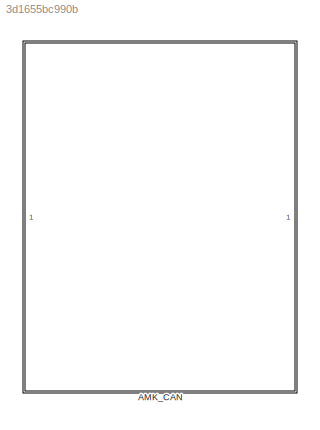
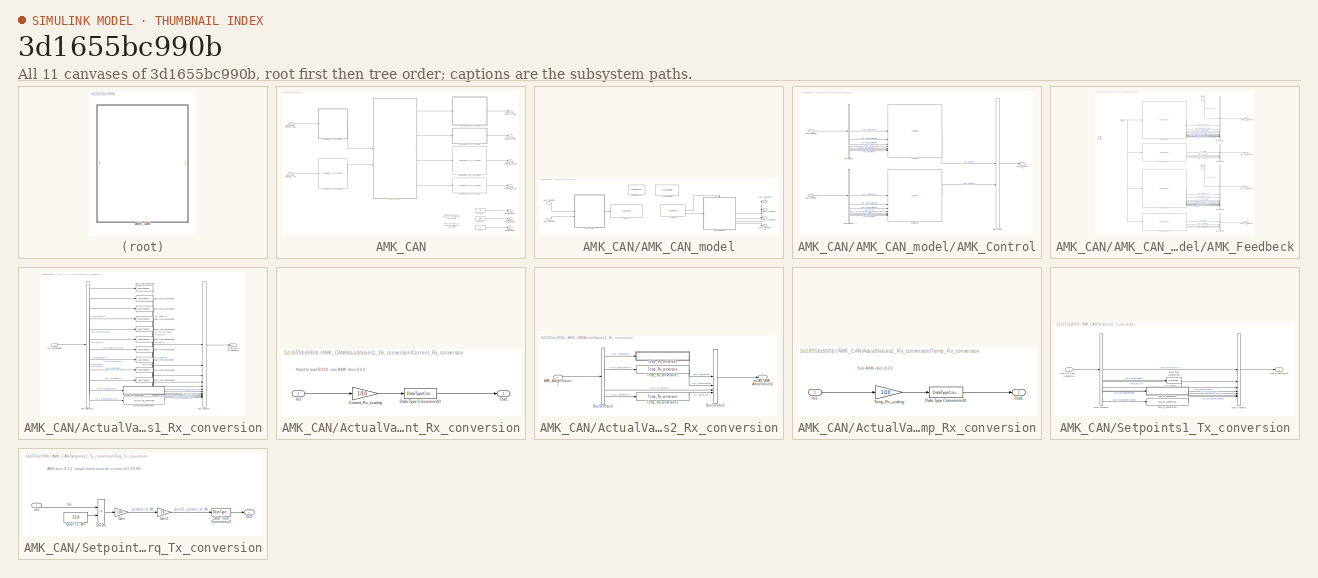
[diagram: thumbnail index - all 11 canvases of the model, root first then tree order]
MODEL slx_3d1655bc990b
KIND library
CONFIG AbsTol = auto
CONFIG EnableMultiTasking = off
CONFIG FixedStep = auto
CONFIG MaxStep = auto
CONFIG MinStep = auto
CONFIG RelTol = 1e-3
CONFIG SampleTimeConstraint = Unconstrained
CONFIG SolverName = VariableStepAuto
CONFIG StartTime = 0.0
CONFIG StopTime = 10.0
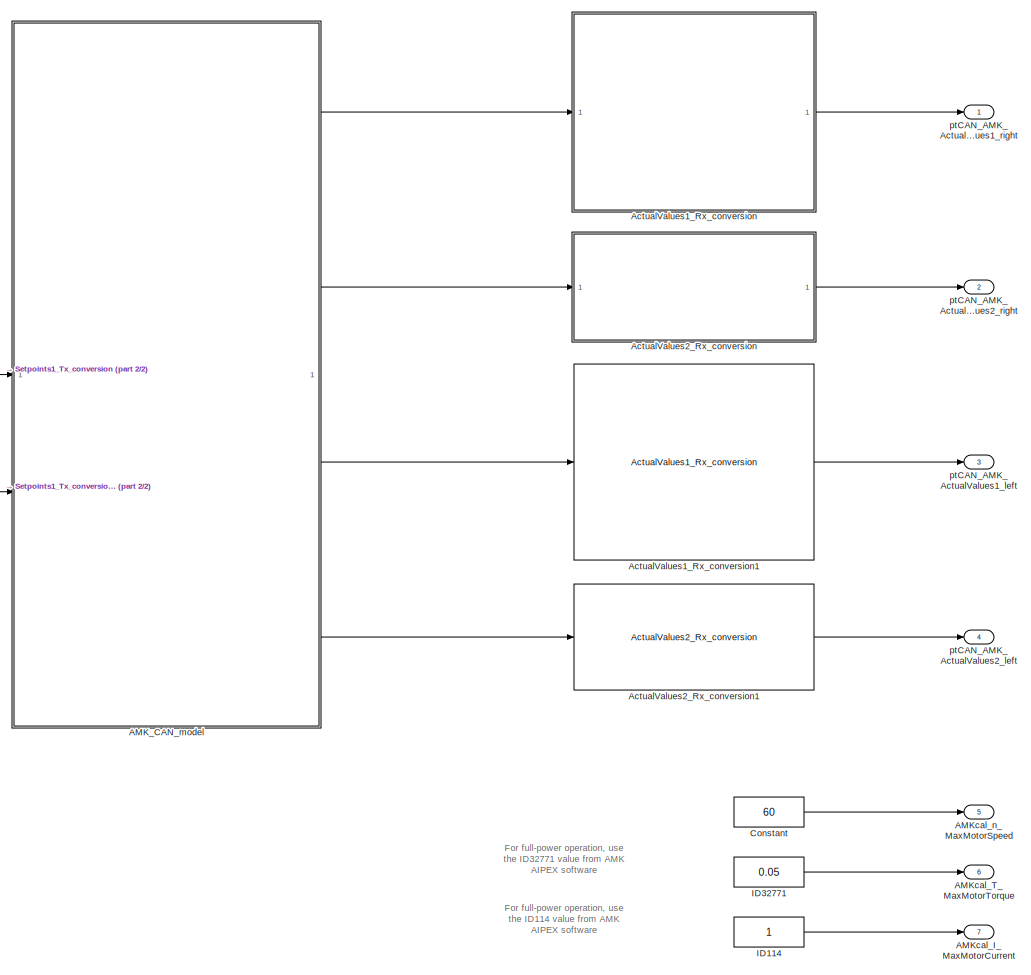
[diagram: AMK_CAN - part 1/2, right side, full height]
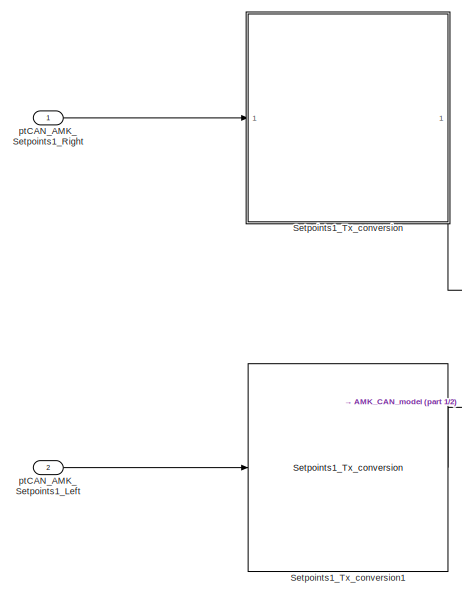
[diagram: AMK_CAN - part 2/2, middle left region]
BLOCK [SubSystem] AMK_CAN
BLOCK [SubSystem] AMK_CAN/AMK_CAN_model
BLOCK [Outport] AMK_CAN/AMK_CAN_model/AMK0_ActualValues1
BLOCK [Outport] AMK_CAN/AMK_CAN_model/AMK0_ActualValues2
  Port = 2
BLOCK [Inport] AMK_CAN/AMK_CAN_model/AMK0_SetPoints1
BLOCK [Outport] AMK_CAN/AMK_CAN_model/AMK1_ActualValues1
  Port = 3
BLOCK [Outport] AMK_CAN/AMK_CAN_model/AMK1_ActualValues2
  Port = 4
BLOCK [Inport] AMK_CAN/AMK_CAN_model/AMK1_SetPoints1
  Port = 2
BLOCK [SubSystem] AMK_CAN/AMK_CAN_model/AMK_Control
BLOCK [Inport] AMK_CAN/AMK_CAN_model/AMK_Control/AMK0_SetPoints1
BLOCK [Inport] AMK_CAN/AMK_CAN_model/AMK_Control/AMK1_SetPoints1
  Port = 2
BLOCK [Outport] AMK_CAN/AMK_CAN_model/AMK_Control/AMK_messages_Tx
BLOCK [BusCreator] AMK_CAN/AMK_CAN_model/AMK_Control/Bus Creator
  DisplayOption = bar
  InheritFromInputs = on
  Inputs = 2
BLOCK [BusSelector] AMK_CAN/AMK_CAN_model/AMK_Control/Bus Selector
  OutputSignals = ptCAN_AMK_Setpoints1_Right.AMK_TargetVelocity,ptCAN_AMK_Setpoints1_Right.AMK_TorqueLimitNegativ,ptCAN_AMK_Setpoints1_Right.AMK_TorqueLimitPositiv,ptCAN_AMK_Setpoints1_Right.AMK_bDcOn,ptCAN_AMK_Setpoints1_Right.AMK_bEnable,ptCAN_AMK_Setpoints1_Right.AMK_bErrorReset,ptCAN_AMK_Setpoints1_Right.AMK_bInverterOn
BLOCK [BusSelector] AMK_CAN/AMK_CAN_model/AMK_Control/Bus Selector1
  OutputSignals = ptCAN_AMK_Setpoints1_Right.AMK_TargetVelocity,ptCAN_AMK_Setpoints1_Right.AMK_TorqueLimitNegativ,ptCAN_AMK_Setpoints1_Right.AMK_TorqueLimitPositiv,ptCAN_AMK_Setpoints1_Right.AMK_bDcOn,ptCAN_AMK_Setpoints1_Right.AMK_bEnable,ptCAN_AMK_Setpoints1_Right.AMK_bErrorReset,ptCAN_AMK_Setpoints1_Right.AMK_bInverterOn
BLOCK [Reference] AMK_CAN/AMK_CAN_model/AMK_Control/CAN Pack  REF=canmsglib/CAN Pack
  LibrarySourceBlock = canlib/CAN Pack
  SourceBlock = canmsglib/CAN Pack
  SourceType = CAN Pack
BLOCK [Reference] AMK_CAN/AMK_CAN_model/AMK_Control/CAN Pack1  REF=canmsglib/CAN Pack
  LibrarySourceBlock = canlib/CAN Pack
  SourceBlock = canmsglib/CAN Pack
  SourceType = CAN Pack
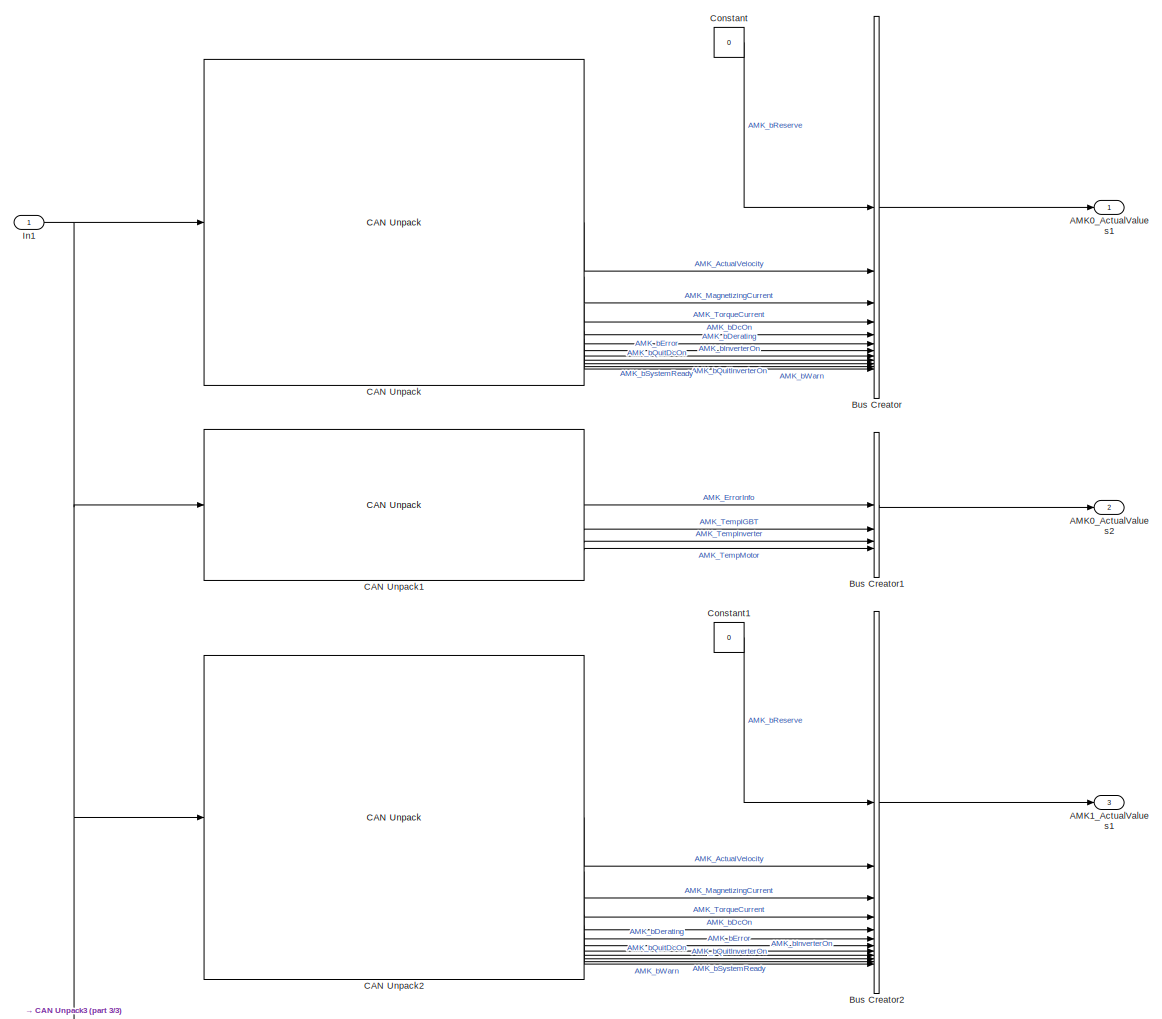
[diagram: AMK_CAN/AMK_CAN_model/AMK_Feedbeck - part 1/3, most of the canvas]
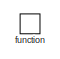
[diagram: AMK_CAN/AMK_CAN_model/AMK_Feedbeck - part 2/3, top left region]
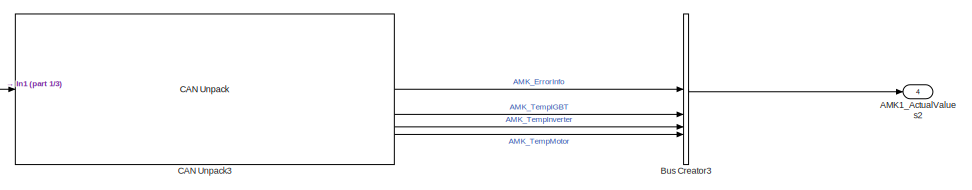
[diagram: AMK_CAN/AMK_CAN_model/AMK_Feedbeck - part 3/3, bottom center region]
BLOCK [SubSystem] AMK_CAN/AMK_CAN_model/AMK_Feedbeck
  TreatAsAtomicUnit = on
BLOCK [Outport] AMK_CAN/AMK_CAN_model/AMK_Feedbeck/AMK0_ActualValues1
BLOCK [Outport] AMK_CAN/AMK_CAN_model/AMK_Feedbeck/AMK0_ActualValues2
  Port = 2
BLOCK [Outport] AMK_CAN/AMK_CAN_model/AMK_Feedbeck/AMK1_ActualValues1
  Port = 3
BLOCK [Outport] AMK_CAN/AMK_CAN_model/AMK_Feedbeck/AMK1_ActualValues2
  Port = 4
BLOCK [BusCreator] AMK_CAN/AMK_CAN_model/AMK_Feedbeck/Bus Creator
  DisplayOption = bar
  InheritFromInputs = on
  Inputs = 12
BLOCK [BusCreator] AMK_CAN/AMK_CAN_model/AMK_Feedbeck/Bus Creator1
  DisplayOption = bar
  InheritFromInputs = on
  Inputs = 4
BLOCK [BusCreator] AMK_CAN/AMK_CAN_model/AMK_Feedbeck/Bus Creator2
  DisplayOption = bar
  InheritFromInputs = on
  Inputs = 12
BLOCK [BusCreator] AMK_CAN/AMK_CAN_model/AMK_Feedbeck/Bus Creator3
  DisplayOption = bar
  InheritFromInputs = on
  Inputs = 4
BLOCK [Reference] AMK_CAN/AMK_CAN_model/AMK_Feedbeck/CAN Unpack  REF=canmsglib/CAN Unpack
  LibrarySourceBlock = canlib/CAN Unpack
  SourceBlock = canmsglib/CAN Unpack
  SourceType = CAN Unpack
BLOCK [Reference] AMK_CAN/AMK_CAN_model/AMK_Feedbeck/CAN Unpack1  REF=canmsglib/CAN Unpack
  LibrarySourceBlock = canlib/CAN Unpack
  SourceBlock = canmsglib/CAN Unpack
  SourceType = CAN Unpack
BLOCK [Reference] AMK_CAN/AMK_CAN_model/AMK_Feedbeck/CAN Unpack2  REF=canmsglib/CAN Unpack
  LibrarySourceBlock = canlib/CAN Unpack
  SourceBlock = canmsglib/CAN Unpack
  SourceType = CAN Unpack
BLOCK [Reference] AMK_CAN/AMK_CAN_model/AMK_Feedbeck/CAN Unpack3  REF=canmsglib/CAN Unpack
  LibrarySourceBlock = canlib/CAN Unpack
  SourceBlock = canmsglib/CAN Unpack
  SourceType = CAN Unpack
BLOCK [Constant] AMK_CAN/AMK_CAN_model/AMK_Feedbeck/Constant
  OutDataTypeStr = boolean
  Value = 0
BLOCK [Constant] AMK_CAN/AMK_CAN_model/AMK_Feedbeck/Constant1
  OutDataTypeStr = boolean
  Value = 0
BLOCK [Inport] AMK_CAN/AMK_CAN_model/AMK_Feedbeck/In1
BLOCK [TriggerPort] AMK_CAN/AMK_CAN_model/AMK_Feedbeck/function
  StatesWhenEnabling = held
  TriggerType = function-call
  VariantControl = (inherit)
BLOCK [Reference] AMK_CAN/AMK_CAN_model/CAN Configuration  REF=canlib/CAN Configuration
  SourceBlock = canlib/CAN Configuration
  SourceType = CAN Configuration
BLOCK [Reference] AMK_CAN/AMK_CAN_model/CAN_Rx  REF=canlib/CAN Receive
  SourceBlock = canlib/CAN Receive
  SourceType = CAN Receive
BLOCK [Reference] AMK_CAN/AMK_CAN_model/CAN_Tx  REF=canlib/CAN Transmit
  SourceBlock = canlib/CAN Transmit
  SourceType = CAN Transmit
BLOCK [Reference] AMK_CAN/AMK_CAN_model/Real-Time Pacer  REF=realtime_pacer_lib/Real-Time Pacer
  SourceBlock = realtime_pacer_lib/Real-Time Pacer
  SourceType = RealTime_Pacer
BLOCK [Outport] AMK_CAN/AMKcal_I_MaxMotorCurrent
  Port = 7
BLOCK [Outport] AMK_CAN/AMKcal_T_MaxMotorTorque
  Port = 6
BLOCK [Outport] AMK_CAN/AMKcal_n_MaxMotorSpeed
  Port = 5
BLOCK [SubSystem] AMK_CAN/ActualValues1_Rx_conversion
BLOCK [Inport] AMK_CAN/ActualValues1_Rx_conversion/AMK_ActualValues1
BLOCK [BusCreator] AMK_CAN/ActualValues1_Rx_conversion/Bus Creator1
  DisplayOption = bar
  InheritFromInputs = on
  Inputs = 12
BLOCK [BusSelector] AMK_CAN/ActualValues1_Rx_conversion/Bus Selector2
  OutputSignals = AMK_bReserve,AMK_bSystemReady,AMK_bError,AMK_bWarn,AMK_bQuitDcOn,AMK_bDcOn,AMK_bQuitInverterOn,AMK_bInverterOn,AMK_bDerating,AMK_ActualVelocity,AMK_TorqueCurrent,AMK_MagnetizingCurrent
BLOCK [SubSystem] AMK_CAN/ActualValues1_Rx_conversion/Current_Rx_conversion
BLOCK [Gain] AMK_CAN/ActualValues1_Rx_conversion/Current_Rx_conversion/Current_Rx_scaling
  Gain = 1/10
BLOCK [DataTypeConversion] AMK_CAN/ActualValues1_Rx_conversion/Current_Rx_conversion/Data Type Conversion10
  OutDataTypeStr = single
  RndMeth = Floor
  SaturateOnIntegerOverflow = off
BLOCK [Inport] AMK_CAN/ActualValues1_Rx_conversion/Current_Rx_conversion/In1
BLOCK [Outport] AMK_CAN/ActualValues1_Rx_conversion/Current_Rx_conversion/Out1
BLOCK [Reference] AMK_CAN/ActualValues1_Rx_conversion/Current_Rx_conversion1  REF=$bdroot/AMK_CAN/ActualValues1_Rx_conversion/Current_Rx_conversion
  SourceBlock = $bdroot/AMK_CAN/ActualValues1_Rx_conversion/Current_Rx_conversion
  SourceType = SubSystem
BLOCK [DataTypeConversion] AMK_CAN/ActualValues1_Rx_conversion/Data Type Conversion
  OutDataTypeStr = boolean
  RndMeth = Floor
  SaturateOnIntegerOverflow = off
BLOCK [DataTypeConversion] AMK_CAN/ActualValues1_Rx_conversion/Data Type Conversion1
  OutDataTypeStr = boolean
  RndMeth = Floor
  SaturateOnIntegerOverflow = off
BLOCK [DataTypeConversion] AMK_CAN/ActualValues1_Rx_conversion/Data Type Conversion2
  OutDataTypeStr = boolean
  RndMeth = Floor
  SaturateOnIntegerOverflow = off
BLOCK [DataTypeConversion] AMK_CAN/ActualValues1_Rx_conversion/Data Type Conversion3
  OutDataTypeStr = boolean
  RndMeth = Floor
  SaturateOnIntegerOverflow = off
BLOCK [DataTypeConversion] AMK_CAN/ActualValues1_Rx_conversion/Data Type Conversion4
  OutDataTypeStr = boolean
  RndMeth = Floor
  SaturateOnIntegerOverflow = off
BLOCK [DataTypeConversion] AMK_CAN/ActualValues1_Rx_conversion/Data Type Conversion5
  OutDataTypeStr = boolean
  RndMeth = Floor
  SaturateOnIntegerOverflow = off
BLOCK [DataTypeConversion] AMK_CAN/ActualValues1_Rx_conversion/Data Type Conversion6
  OutDataTypeStr = boolean
  RndMeth = Floor
  SaturateOnIntegerOverflow = off
BLOCK [DataTypeConversion] AMK_CAN/ActualValues1_Rx_conversion/Data Type Conversion7
  OutDataTypeStr = boolean
  RndMeth = Floor
  SaturateOnIntegerOverflow = off
BLOCK [DataTypeConversion] AMK_CAN/ActualValues1_Rx_conversion/Data Type Conversion8
  OutDataTypeStr = boolean
  RndMeth = Floor
  SaturateOnIntegerOverflow = off
BLOCK [DataTypeConversion] AMK_CAN/ActualValues1_Rx_conversion/Data Type Conversion9
  OutDataTypeStr = single
  RndMeth = Floor
  SaturateOnIntegerOverflow = off
BLOCK [Outport] AMK_CAN/ActualValues1_Rx_conversion/ptCAN_AMK_ActualValues1
BLOCK [Reference] AMK_CAN/ActualValues1_Rx_conversion1  REF=$bdroot/AMK_CAN/ActualValues1_Rx_conversion
  SourceBlock = $bdroot/AMK_CAN/ActualValues1_Rx_conversion
  SourceType = SubSystem
BLOCK [SubSystem] AMK_CAN/ActualValues2_Rx_conversion
BLOCK [Inport] AMK_CAN/ActualValues2_Rx_conversion/AMK_ActualValues2
BLOCK [BusCreator] AMK_CAN/ActualValues2_Rx_conversion/Bus Creator1
  DisplayOption = bar
  InheritFromInputs = on
  Inputs = 4
BLOCK [BusSelector] AMK_CAN/ActualValues2_Rx_conversion/Bus Selector3
  OutputSignals = AMK_TempMotor,AMK_TempInverter,AMK_ErrorInfo,AMK_TempIGBT
BLOCK [SubSystem] AMK_CAN/ActualValues2_Rx_conversion/Temp_Rx_conversion
BLOCK [DataTypeConversion] AMK_CAN/ActualValues2_Rx_conversion/Temp_Rx_conversion/Data Type Conversion10
  OutDataTypeStr = single
  RndMeth = Floor
  SaturateOnIntegerOverflow = off
BLOCK [Inport] AMK_CAN/ActualValues2_Rx_conversion/Temp_Rx_conversion/In1
BLOCK [Outport] AMK_CAN/ActualValues2_Rx_conversion/Temp_Rx_conversion/Out1
BLOCK [Gain] AMK_CAN/ActualValues2_Rx_conversion/Temp_Rx_conversion/Temp_Rx_scaling
  Gain = 1/10
BLOCK [Reference] AMK_CAN/ActualValues2_Rx_conversion/Temp_Rx_conversion1  REF=$bdroot/AMK_CAN/ActualValues2_Rx_conversion/Temp_Rx_conversion
  SourceBlock = $bdroot/AMK_CAN/ActualValues2_Rx_conversion/Temp_Rx_conversion
  SourceType = SubSystem
BLOCK [Reference] AMK_CAN/ActualValues2_Rx_conversion/Temp_Rx_conversion2  REF=$bdroot/AMK_CAN/ActualValues2_Rx_conversion/Temp_Rx_conversion
  SourceBlock = $bdroot/AMK_CAN/ActualValues2_Rx_conversion/Temp_Rx_conversion
  SourceType = SubSystem
BLOCK [Outport] AMK_CAN/ActualValues2_Rx_conversion/ptCAN_AMK_ActualValues2
BLOCK [Reference] AMK_CAN/ActualValues2_Rx_conversion1  REF=$bdroot/AMK_CAN/ActualValues2_Rx_conversion
  SourceBlock = $bdroot/AMK_CAN/ActualValues2_Rx_conversion
  SourceType = SubSystem
BLOCK [Constant] AMK_CAN/Constant
  OutDataTypeStr = single
  Value = 60
BLOCK [Constant] AMK_CAN/ID114
  OutDataTypeStr = single
BLOCK [Constant] AMK_CAN/ID32771
  OutDataTypeStr = single
  Value = 0.05
BLOCK [SubSystem] AMK_CAN/Setpoints1_Tx_conversion
BLOCK [Outport] AMK_CAN/Setpoints1_Tx_conversion/AMK_SetPoints1
BLOCK [BusCreator] AMK_CAN/Setpoints1_Tx_conversion/Bus Creator3
  DisplayOption = bar
  InheritFromInputs = on
  Inputs = 7
BLOCK [BusSelector] AMK_CAN/Setpoints1_Tx_conversion/Bus Selector
  OutputSignals = AMK_bInverterOn,AMK_bDcOn,AMK_bEnable,AMK_bErrorReset,AMK_TargetVelocity,AMK_TorqueLimitPositiv,AMK_TorqueLimitNegativ
BLOCK [DataTypeConversion] AMK_CAN/Setpoints1_Tx_conversion/Data Type Conversion1
  OutDataTypeStr = int16
  RndMeth = Floor
  SaturateOnIntegerOverflow = off
BLOCK [SubSystem] AMK_CAN/Setpoints1_Tx_conversion/Torq_Tx_conversion
BLOCK [DataTypeConversion] AMK_CAN/Setpoints1_Tx_conversion/Torq_Tx_conversion/Data Type Conversion2
  OutDataTypeStr = int16
  RndMeth = Floor
  SaturateOnIntegerOverflow = off
BLOCK [Product] AMK_CAN/Setpoints1_Tx_conversion/Torq_Tx_conversion/Divide
  Inputs = */
BLOCK [Gain] AMK_CAN/Setpoints1_Tx_conversion/Torq_Tx_conversion/Gain
  Gain = 100
BLOCK [Gain] AMK_CAN/Setpoints1_Tx_conversion/Torq_Tx_conversion/Gain1
  Gain = 10
BLOCK [Constant] AMK_CAN/Setpoints1_Tx_conversion/Torq_Tx_conversion/ID32771_Mn
  OutDataTypeStr = single
  Value = 13.8
BLOCK [Inport] AMK_CAN/Setpoints1_Tx_conversion/Torq_Tx_conversion/In1
BLOCK [Outport] AMK_CAN/Setpoints1_Tx_conversion/Torq_Tx_conversion/Out1
BLOCK [Reference] AMK_CAN/Setpoints1_Tx_conversion/Torq_Tx_conversion1  REF=$bdroot/AMK_CAN/Setpoints1_Tx_conversion/Torq_Tx_conversion
  SourceBlock = $bdroot/AMK_CAN/Setpoints1_Tx_conversion/Torq_Tx_conversion
  SourceType = SubSystem
BLOCK [Inport] AMK_CAN/Setpoints1_Tx_conversion/ptCAN_AMK_Setpoints1
BLOCK [Reference] AMK_CAN/Setpoints1_Tx_conversion1  REF=$bdroot/AMK_CAN/Setpoints1_Tx_conversion
  SourceBlock = $bdroot/AMK_CAN/Setpoints1_Tx_conversion
  SourceType = SubSystem
BLOCK [Outport] AMK_CAN/ptCAN_AMK_ActualValues1_left
  Port = 3
BLOCK [Outport] AMK_CAN/ptCAN_AMK_ActualValues1_right
BLOCK [Outport] AMK_CAN/ptCAN_AMK_ActualValues2_left
  Port = 4
BLOCK [Outport] AMK_CAN/ptCAN_AMK_ActualValues2_right
  Port = 2
BLOCK [Inport] AMK_CAN/ptCAN_AMK_Setpoints1_Left
  Port = 2
BLOCK [Inport] AMK_CAN/ptCAN_AMK_Setpoints1_Right
ANNOTATION AMK_CAN: For full-power operation, use the ID114 value from AMK AIPEX software
ANNOTATION AMK_CAN: For full-power operation, use the ID32771 value from AMK AIPEX software
ANNOTATION AMK_CAN/ActualValues1_Rx_conversion/Current_Rx_conversion: Need to read ID110 - see AMK docs 8.2.4
ANNOTATION AMK_CAN/ActualValues2_Rx_conversion/Temp_Rx_conversion: See AMK docs 8.2.4
ANNOTATION AMK_CAN/Setpoints1_Tx_conversion/Torq_Tx_conversion: AMK docs 8.2.4 - torque limits must be in units of 0.1% Mn
LINE AMK_CAN/AMK_CAN_model/AMK0_SetPoints1:1 -> AMK_CAN/AMK_CAN_model/AMK_Control:1
LINE AMK_CAN/AMK_CAN_model/AMK1_SetPoints1:1 -> AMK_CAN/AMK_CAN_model/AMK_Control:2
LINE AMK_CAN/AMK_CAN_model/AMK_Control/AMK0_SetPoints1:1 -> AMK_CAN/AMK_CAN_model/AMK_Control/Bus Selector:1
LINE AMK_CAN/AMK_CAN_model/AMK_Control/AMK1_SetPoints1:1 -> AMK_CAN/AMK_CAN_model/AMK_Control/Bus Selector1:1
LINE AMK_CAN/AMK_CAN_model/AMK_Control/Bus Creator:1 -> AMK_CAN/AMK_CAN_model/AMK_Control/AMK_messages_Tx:1
LINE AMK_CAN/AMK_CAN_model/AMK_Control/Bus Selector1:1 -> AMK_CAN/AMK_CAN_model/AMK_Control/CAN Pack1:1
LINE AMK_CAN/AMK_CAN_model/AMK_Control/Bus Selector1:2 -> AMK_CAN/AMK_CAN_model/AMK_Control/CAN Pack1:2
LINE AMK_CAN/AMK_CAN_model/AMK_Control/Bus Selector1:3 -> AMK_CAN/AMK_CAN_model/AMK_Control/CAN Pack1:3
LINE AMK_CAN/AMK_CAN_model/AMK_Control/Bus Selector1:4 -> AMK_CAN/AMK_CAN_model/AMK_Control/CAN Pack1:4
LINE AMK_CAN/AMK_CAN_model/AMK_Control/Bus Selector1:5 -> AMK_CAN/AMK_CAN_model/AMK_Control/CAN Pack1:5
LINE AMK_CAN/AMK_CAN_model/AMK_Control/Bus Selector1:6 -> AMK_CAN/AMK_CAN_model/AMK_Control/CAN Pack1:6
LINE AMK_CAN/AMK_CAN_model/AMK_Control/Bus Selector1:7 -> AMK_CAN/AMK_CAN_model/AMK_Control/CAN Pack1:7
LINE AMK_CAN/AMK_CAN_model/AMK_Control/Bus Selector:1 -> AMK_CAN/AMK_CAN_model/AMK_Control/CAN Pack:1
LINE AMK_CAN/AMK_CAN_model/AMK_Control/Bus Selector:2 -> AMK_CAN/AMK_CAN_model/AMK_Control/CAN Pack:2
LINE AMK_CAN/AMK_CAN_model/AMK_Control/Bus Selector:3 -> AMK_CAN/AMK_CAN_model/AMK_Control/CAN Pack:3
LINE AMK_CAN/AMK_CAN_model/AMK_Control/Bus Selector:4 -> AMK_CAN/AMK_CAN_model/AMK_Control/CAN Pack:4
LINE AMK_CAN/AMK_CAN_model/AMK_Control/Bus Selector:5 -> AMK_CAN/AMK_CAN_model/AMK_Control/CAN Pack:5
LINE AMK_CAN/AMK_CAN_model/AMK_Control/Bus Selector:6 -> AMK_CAN/AMK_CAN_model/AMK_Control/CAN Pack:6
LINE AMK_CAN/AMK_CAN_model/AMK_Control/Bus Selector:7 -> AMK_CAN/AMK_CAN_model/AMK_Control/CAN Pack:7
LINE AMK_CAN/AMK_CAN_model/AMK_Control/CAN Pack1:1 -> AMK_CAN/AMK_CAN_model/AMK_Control/Bus Creator:2
LINE AMK_CAN/AMK_CAN_model/AMK_Control/CAN Pack:1 -> AMK_CAN/AMK_CAN_model/AMK_Control/Bus Creator:1
LINE AMK_CAN/AMK_CAN_model/AMK_Control:1 -> AMK_CAN/AMK_CAN_model/CAN_Tx:1
LINE AMK_CAN/AMK_CAN_model/AMK_Feedbeck/Bus Creator1:1 -> AMK_CAN/AMK_CAN_model/AMK_Feedbeck/AMK0_ActualValues2:1
LINE AMK_CAN/AMK_CAN_model/AMK_Feedbeck/Bus Creator2:1 -> AMK_CAN/AMK_CAN_model/AMK_Feedbeck/AMK1_ActualValues1:1
LINE AMK_CAN/AMK_CAN_model/AMK_Feedbeck/Bus Creator3:1 -> AMK_CAN/AMK_CAN_model/AMK_Feedbeck/AMK1_ActualValues2:1
LINE AMK_CAN/AMK_CAN_model/AMK_Feedbeck/Bus Creator:1 -> AMK_CAN/AMK_CAN_model/AMK_Feedbeck/AMK0_ActualValues1:1
LINE AMK_CAN/AMK_CAN_model/AMK_Feedbeck/CAN Unpack1:1 -> AMK_CAN/AMK_CAN_model/AMK_Feedbeck/Bus Creator1:1
LINE AMK_CAN/AMK_CAN_model/AMK_Feedbeck/CAN Unpack1:2 -> AMK_CAN/AMK_CAN_model/AMK_Feedbeck/Bus Creator1:2
LINE AMK_CAN/AMK_CAN_model/AMK_Feedbeck/CAN Unpack1:3 -> AMK_CAN/AMK_CAN_model/AMK_Feedbeck/Bus Creator1:3
LINE AMK_CAN/AMK_CAN_model/AMK_Feedbeck/CAN Unpack1:4 -> AMK_CAN/AMK_CAN_model/AMK_Feedbeck/Bus Creator1:4
LINE AMK_CAN/AMK_CAN_model/AMK_Feedbeck/CAN Unpack2:1 -> AMK_CAN/AMK_CAN_model/AMK_Feedbeck/Bus Creator2:2
LINE AMK_CAN/AMK_CAN_model/AMK_Feedbeck/CAN Unpack2:10 -> AMK_CAN/AMK_CAN_model/AMK_Feedbeck/Bus Creator2:11
LINE AMK_CAN/AMK_CAN_model/AMK_Feedbeck/CAN Unpack2:11 -> AMK_CAN/AMK_CAN_model/AMK_Feedbeck/Bus Creator2:12
LINE AMK_CAN/AMK_CAN_model/AMK_Feedbeck/CAN Unpack2:2 -> AMK_CAN/AMK_CAN_model/AMK_Feedbeck/Bus Creator2:3
LINE AMK_CAN/AMK_CAN_model/AMK_Feedbeck/CAN Unpack2:3 -> AMK_CAN/AMK_CAN_model/AMK_Feedbeck/Bus Creator2:4
LINE AMK_CAN/AMK_CAN_model/AMK_Feedbeck/CAN Unpack2:4 -> AMK_CAN/AMK_CAN_model/AMK_Feedbeck/Bus Creator2:5
LINE AMK_CAN/AMK_CAN_model/AMK_Feedbeck/CAN Unpack2:5 -> AMK_CAN/AMK_CAN_model/AMK_Feedbeck/Bus Creator2:6
LINE AMK_CAN/AMK_CAN_model/AMK_Feedbeck/CAN Unpack2:6 -> AMK_CAN/AMK_CAN_model/AMK_Feedbeck/Bus Creator2:7
LINE AMK_CAN/AMK_CAN_model/AMK_Feedbeck/CAN Unpack2:7 -> AMK_CAN/AMK_CAN_model/AMK_Feedbeck/Bus Creator2:8
LINE AMK_CAN/AMK_CAN_model/AMK_Feedbeck/CAN Unpack2:8 -> AMK_CAN/AMK_CAN_model/AMK_Feedbeck/Bus Creator2:9
LINE AMK_CAN/AMK_CAN_model/AMK_Feedbeck/CAN Unpack2:9 -> AMK_CAN/AMK_CAN_model/AMK_Feedbeck/Bus Creator2:10
LINE AMK_CAN/AMK_CAN_model/AMK_Feedbeck/CAN Unpack3:1 -> AMK_CAN/AMK_CAN_model/AMK_Feedbeck/Bus Creator3:1
LINE AMK_CAN/AMK_CAN_model/AMK_Feedbeck/CAN Unpack3:2 -> AMK_CAN/AMK_CAN_model/AMK_Feedbeck/Bus Creator3:2
LINE AMK_CAN/AMK_CAN_model/AMK_Feedbeck/CAN Unpack3:3 -> AMK_CAN/AMK_CAN_model/AMK_Feedbeck/Bus Creator3:3
LINE AMK_CAN/AMK_CAN_model/AMK_Feedbeck/CAN Unpack3:4 -> AMK_CAN/AMK_CAN_model/AMK_Feedbeck/Bus Creator3:4
LINE AMK_CAN/AMK_CAN_model/AMK_Feedbeck/CAN Unpack:1 -> AMK_CAN/AMK_CAN_model/AMK_Feedbeck/Bus Creator:2
LINE AMK_CAN/AMK_CAN_model/AMK_Feedbeck/CAN Unpack:10 -> AMK_CAN/AMK_CAN_model/AMK_Feedbeck/Bus Creator:11
LINE AMK_CAN/AMK_CAN_model/AMK_Feedbeck/CAN Unpack:11 -> AMK_CAN/AMK_CAN_model/AMK_Feedbeck/Bus Creator:12
LINE AMK_CAN/AMK_CAN_model/AMK_Feedbeck/CAN Unpack:2 -> AMK_CAN/AMK_CAN_model/AMK_Feedbeck/Bus Creator:3
LINE AMK_CAN/AMK_CAN_model/AMK_Feedbeck/CAN Unpack:3 -> AMK_CAN/AMK_CAN_model/AMK_Feedbeck/Bus Creator:4
LINE AMK_CAN/AMK_CAN_model/AMK_Feedbeck/CAN Unpack:4 -> AMK_CAN/AMK_CAN_model/AMK_Feedbeck/Bus Creator:5
LINE AMK_CAN/AMK_CAN_model/AMK_Feedbeck/CAN Unpack:5 -> AMK_CAN/AMK_CAN_model/AMK_Feedbeck/Bus Creator:6
LINE AMK_CAN/AMK_CAN_model/AMK_Feedbeck/CAN Unpack:6 -> AMK_CAN/AMK_CAN_model/AMK_Feedbeck/Bus Creator:7
LINE AMK_CAN/AMK_CAN_model/AMK_Feedbeck/CAN Unpack:7 -> AMK_CAN/AMK_CAN_model/AMK_Feedbeck/Bus Creator:8
LINE AMK_CAN/AMK_CAN_model/AMK_Feedbeck/CAN Unpack:8 -> AMK_CAN/AMK_CAN_model/AMK_Feedbeck/Bus Creator:9
LINE AMK_CAN/AMK_CAN_model/AMK_Feedbeck/CAN Unpack:9 -> AMK_CAN/AMK_CAN_model/AMK_Feedbeck/Bus Creator:10
LINE AMK_CAN/AMK_CAN_model/AMK_Feedbeck/Constant1:1 -> AMK_CAN/AMK_CAN_model/AMK_Feedbeck/Bus Creator2:1
LINE AMK_CAN/AMK_CAN_model/AMK_Feedbeck/Constant:1 -> AMK_CAN/AMK_CAN_model/AMK_Feedbeck/Bus Creator:1
NET AMK_CAN/AMK_CAN_model/AMK_Feedbeck/In1:1 -> AMK_CAN/AMK_CAN_model/AMK_Feedbeck/CAN Unpack1:1, AMK_CAN/AMK_CAN_model/AMK_Feedbeck/CAN Unpack2:1, AMK_CAN/AMK_CAN_model/AMK_Feedbeck/CAN Unpack3:1, AMK_CAN/AMK_CAN_model/AMK_Feedbeck/CAN Unpack:1
LINE AMK_CAN/AMK_CAN_model/AMK_Feedbeck:1 -> AMK_CAN/AMK_CAN_model/AMK0_ActualValues1:1
LINE AMK_CAN/AMK_CAN_model/AMK_Feedbeck:2 -> AMK_CAN/AMK_CAN_model/AMK0_ActualValues2:1
LINE AMK_CAN/AMK_CAN_model/AMK_Feedbeck:3 -> AMK_CAN/AMK_CAN_model/AMK1_ActualValues1:1
LINE AMK_CAN/AMK_CAN_model/AMK_Feedbeck:4 -> AMK_CAN/AMK_CAN_model/AMK1_ActualValues2:1
LINE AMK_CAN/AMK_CAN_model/CAN_Rx:1 -> AMK_CAN/AMK_CAN_model/AMK_Feedbeck:trigger
LINE AMK_CAN/AMK_CAN_model/CAN_Rx:2 -> AMK_CAN/AMK_CAN_model/AMK_Feedbeck:1
LINE AMK_CAN/AMK_CAN_model:1 -> AMK_CAN/ActualValues1_Rx_conversion:1
LINE AMK_CAN/AMK_CAN_model:2 -> AMK_CAN/ActualValues2_Rx_conversion:1
LINE AMK_CAN/AMK_CAN_model:3 -> AMK_CAN/ActualValues1_Rx_conversion1:1
LINE AMK_CAN/AMK_CAN_model:4 -> AMK_CAN/ActualValues2_Rx_conversion1:1
LINE AMK_CAN/ActualValues1_Rx_conversion/AMK_ActualValues1:1 -> AMK_CAN/ActualValues1_Rx_conversion/Bus Selector2:1
LINE AMK_CAN/ActualValues1_Rx_conversion/Bus Creator1:1 -> AMK_CAN/ActualValues1_Rx_conversion/ptCAN_AMK_ActualValues1:1
LINE AMK_CAN/ActualValues1_Rx_conversion/Bus Selector2:1 -> AMK_CAN/ActualValues1_Rx_conversion/Data Type Conversion:1
LINE AMK_CAN/ActualValues1_Rx_conversion/Bus Selector2:10 -> AMK_CAN/ActualValues1_Rx_conversion/Data Type Conversion9:1
LINE AMK_CAN/ActualValues1_Rx_conversion/Bus Selector2:11 -> AMK_CAN/ActualValues1_Rx_conversion/Current_Rx_conversion:1
LINE AMK_CAN/ActualValues1_Rx_conversion/Bus Selector2:12 -> AMK_CAN/ActualValues1_Rx_conversion/Current_Rx_conversion1:1
LINE AMK_CAN/ActualValues1_Rx_conversion/Bus Selector2:2 -> AMK_CAN/ActualValues1_Rx_conversion/Data Type Conversion1:1
LINE AMK_CAN/ActualValues1_Rx_conversion/Bus Selector2:3 -> AMK_CAN/ActualValues1_Rx_conversion/Data Type Conversion2:1
LINE AMK_CAN/ActualValues1_Rx_conversion/Bus Selector2:4 -> AMK_CAN/ActualValues1_Rx_conversion/Data Type Conversion3:1
LINE AMK_CAN/ActualValues1_Rx_conversion/Bus Selector2:5 -> AMK_CAN/ActualValues1_Rx_conversion/Data Type Conversion4:1
LINE AMK_CAN/ActualValues1_Rx_conversion/Bus Selector2:6 -> AMK_CAN/ActualValues1_Rx_conversion/Data Type Conversion5:1
LINE AMK_CAN/ActualValues1_Rx_conversion/Bus Selector2:7 -> AMK_CAN/ActualValues1_Rx_conversion/Data Type Conversion6:1
LINE AMK_CAN/ActualValues1_Rx_conversion/Bus Selector2:8 -> AMK_CAN/ActualValues1_Rx_conversion/Data Type Conversion7:1
LINE AMK_CAN/ActualValues1_Rx_conversion/Bus Selector2:9 -> AMK_CAN/ActualValues1_Rx_conversion/Data Type Conversion8:1
LINE AMK_CAN/ActualValues1_Rx_conversion/Current_Rx_conversion/Current_Rx_scaling:1 -> AMK_CAN/ActualValues1_Rx_conversion/Current_Rx_conversion/Data Type Conversion10:1
LINE AMK_CAN/ActualValues1_Rx_conversion/Current_Rx_conversion/Data Type Conversion10:1 -> AMK_CAN/ActualValues1_Rx_conversion/Current_Rx_conversion/Out1:1
LINE AMK_CAN/ActualValues1_Rx_conversion/Current_Rx_conversion/In1:1 -> AMK_CAN/ActualValues1_Rx_conversion/Current_Rx_conversion/Current_Rx_scaling:1
LINE AMK_CAN/ActualValues1_Rx_conversion/Current_Rx_conversion1:1 -> AMK_CAN/ActualValues1_Rx_conversion/Bus Creator1:12
LINE AMK_CAN/ActualValues1_Rx_conversion/Current_Rx_conversion:1 -> AMK_CAN/ActualValues1_Rx_conversion/Bus Creator1:11
LINE AMK_CAN/ActualValues1_Rx_conversion/Data Type Conversion1:1 -> AMK_CAN/ActualValues1_Rx_conversion/Bus Creator1:2
LINE AMK_CAN/ActualValues1_Rx_conversion/Data Type Conversion2:1 -> AMK_CAN/ActualValues1_Rx_conversion/Bus Creator1:3
LINE AMK_CAN/ActualValues1_Rx_conversion/Data Type Conversion3:1 -> AMK_CAN/ActualValues1_Rx_conversion/Bus Creator1:4
LINE AMK_CAN/ActualValues1_Rx_conversion/Data Type Conversion4:1 -> AMK_CAN/ActualValues1_Rx_conversion/Bus Creator1:5
LINE AMK_CAN/ActualValues1_Rx_conversion/Data Type Conversion5:1 -> AMK_CAN/ActualValues1_Rx_conversion/Bus Creator1:6
LINE AMK_CAN/ActualValues1_Rx_conversion/Data Type Conversion6:1 -> AMK_CAN/ActualValues1_Rx_conversion/Bus Creator1:7
LINE AMK_CAN/ActualValues1_Rx_conversion/Data Type Conversion7:1 -> AMK_CAN/ActualValues1_Rx_conversion/Bus Creator1:8
LINE AMK_CAN/ActualValues1_Rx_conversion/Data Type Conversion8:1 -> AMK_CAN/ActualValues1_Rx_conversion/Bus Creator1:9
LINE AMK_CAN/ActualValues1_Rx_conversion/Data Type Conversion9:1 -> AMK_CAN/ActualValues1_Rx_conversion/Bus Creator1:10
LINE AMK_CAN/ActualValues1_Rx_conversion/Data Type Conversion:1 -> AMK_CAN/ActualValues1_Rx_conversion/Bus Creator1:1
LINE AMK_CAN/ActualValues1_Rx_conversion1:1 -> AMK_CAN/ptCAN_AMK_ActualValues1_left:1
LINE AMK_CAN/ActualValues1_Rx_conversion:1 -> AMK_CAN/ptCAN_AMK_ActualValues1_right:1
LINE AMK_CAN/ActualValues2_Rx_conversion/AMK_ActualValues2:1 -> AMK_CAN/ActualValues2_Rx_conversion/Bus Selector3:1
LINE AMK_CAN/ActualValues2_Rx_conversion/Bus Creator1:1 -> AMK_CAN/ActualValues2_Rx_conversion/ptCAN_AMK_ActualValues2:1
LINE AMK_CAN/ActualValues2_Rx_conversion/Bus Selector3:1 -> AMK_CAN/ActualValues2_Rx_conversion/Temp_Rx_conversion:1
LINE AMK_CAN/ActualValues2_Rx_conversion/Bus Selector3:2 -> AMK_CAN/ActualValues2_Rx_conversion/Temp_Rx_conversion1:1
LINE AMK_CAN/ActualValues2_Rx_conversion/Bus Selector3:3 -> AMK_CAN/ActualValues2_Rx_conversion/Bus Creator1:3
LINE AMK_CAN/ActualValues2_Rx_conversion/Bus Selector3:4 -> AMK_CAN/ActualValues2_Rx_conversion/Temp_Rx_conversion2:1
LINE AMK_CAN/ActualValues2_Rx_conversion/Temp_Rx_conversion/Data Type Conversion10:1 -> AMK_CAN/ActualValues2_Rx_conversion/Temp_Rx_conversion/Out1:1
LINE AMK_CAN/ActualValues2_Rx_conversion/Temp_Rx_conversion/In1:1 -> AMK_CAN/ActualValues2_Rx_conversion/Temp_Rx_conversion/Temp_Rx_scaling:1
LINE AMK_CAN/ActualValues2_Rx_conversion/Temp_Rx_conversion/Temp_Rx_scaling:1 -> AMK_CAN/ActualValues2_Rx_conversion/Temp_Rx_conversion/Data Type Conversion10:1
LINE AMK_CAN/ActualValues2_Rx_conversion/Temp_Rx_conversion1:1 -> AMK_CAN/ActualValues2_Rx_conversion/Bus Creator1:2
LINE AMK_CAN/ActualValues2_Rx_conversion/Temp_Rx_conversion2:1 -> AMK_CAN/ActualValues2_Rx_conversion/Bus Creator1:4
LINE AMK_CAN/ActualValues2_Rx_conversion/Temp_Rx_conversion:1 -> AMK_CAN/ActualValues2_Rx_conversion/Bus Creator1:1
LINE AMK_CAN/ActualValues2_Rx_conversion1:1 -> AMK_CAN/ptCAN_AMK_ActualValues2_left:1
LINE AMK_CAN/ActualValues2_Rx_conversion:1 -> AMK_CAN/ptCAN_AMK_ActualValues2_right:1
LINE AMK_CAN/Constant:1 -> AMK_CAN/AMKcal_n_MaxMotorSpeed:1
LINE AMK_CAN/ID114:1 -> AMK_CAN/AMKcal_I_MaxMotorCurrent:1
LINE AMK_CAN/ID32771:1 -> AMK_CAN/AMKcal_T_MaxMotorTorque:1
LINE AMK_CAN/Setpoints1_Tx_conversion/Bus Creator3:1 -> AMK_CAN/Setpoints1_Tx_conversion/AMK_SetPoints1:1
LINE AMK_CAN/Setpoints1_Tx_conversion/Bus Selector:1 -> AMK_CAN/Setpoints1_Tx_conversion/Bus Creator3:1
LINE AMK_CAN/Setpoints1_Tx_conversion/Bus Selector:2 -> AMK_CAN/Setpoints1_Tx_conversion/Bus Creator3:2
LINE AMK_CAN/Setpoints1_Tx_conversion/Bus Selector:3 -> AMK_CAN/Setpoints1_Tx_conversion/Bus Creator3:3
LINE AMK_CAN/Setpoints1_Tx_conversion/Bus Selector:4 -> AMK_CAN/Setpoints1_Tx_conversion/Bus Creator3:4
LINE AMK_CAN/Setpoints1_Tx_conversion/Bus Selector:5 -> AMK_CAN/Setpoints1_Tx_conversion/Data Type Conversion1:1
LINE AMK_CAN/Setpoints1_Tx_conversion/Bus Selector:6 -> AMK_CAN/Setpoints1_Tx_conversion/Torq_Tx_conversion:1
LINE AMK_CAN/Setpoints1_Tx_conversion/Bus Selector:7 -> AMK_CAN/Setpoints1_Tx_conversion/Torq_Tx_conversion1:1
LINE AMK_CAN/Setpoints1_Tx_conversion/Data Type Conversion1:1 -> AMK_CAN/Setpoints1_Tx_conversion/Bus Creator3:5
LINE AMK_CAN/Setpoints1_Tx_conversion/Torq_Tx_conversion/Data Type Conversion2:1 -> AMK_CAN/Setpoints1_Tx_conversion/Torq_Tx_conversion/Out1:1
LINE AMK_CAN/Setpoints1_Tx_conversion/Torq_Tx_conversion/Divide:1 -> AMK_CAN/Setpoints1_Tx_conversion/Torq_Tx_conversion/Gain:1
LINE AMK_CAN/Setpoints1_Tx_conversion/Torq_Tx_conversion/Gain1:1 -> AMK_CAN/Setpoints1_Tx_conversion/Torq_Tx_conversion/Data Type Conversion2:1
LINE AMK_CAN/Setpoints1_Tx_conversion/Torq_Tx_conversion/Gain:1 -> AMK_CAN/Setpoints1_Tx_conversion/Torq_Tx_conversion/Gain1:1
LINE AMK_CAN/Setpoints1_Tx_conversion/Torq_Tx_conversion/ID32771_Mn:1 -> AMK_CAN/Setpoints1_Tx_conversion/Torq_Tx_conversion/Divide:2
LINE AMK_CAN/Setpoints1_Tx_conversion/Torq_Tx_conversion/In1:1 -> AMK_CAN/Setpoints1_Tx_conversion/Torq_Tx_conversion/Divide:1
LINE AMK_CAN/Setpoints1_Tx_conversion/Torq_Tx_conversion1:1 -> AMK_CAN/Setpoints1_Tx_conversion/Bus Creator3:7
LINE AMK_CAN/Setpoints1_Tx_conversion/Torq_Tx_conversion:1 -> AMK_CAN/Setpoints1_Tx_conversion/Bus Creator3:6
LINE AMK_CAN/Setpoints1_Tx_conversion/ptCAN_AMK_Setpoints1:1 -> AMK_CAN/Setpoints1_Tx_conversion/Bus Selector:1
LINE AMK_CAN/Setpoints1_Tx_conversion1:1 -> AMK_CAN/AMK_CAN_model:2
LINE AMK_CAN/Setpoints1_Tx_conversion:1 -> AMK_CAN/AMK_CAN_model:1
LINE AMK_CAN/ptCAN_AMK_Setpoints1_Left:1 -> AMK_CAN/Setpoints1_Tx_conversion1:1
LINE AMK_CAN/ptCAN_AMK_Setpoints1_Right:1 -> AMK_CAN/Setpoints1_Tx_conversion:1
note: NET lines group one-source signal fan-out (src -> all destinations, sorted); 1:1 wires keep LINE
